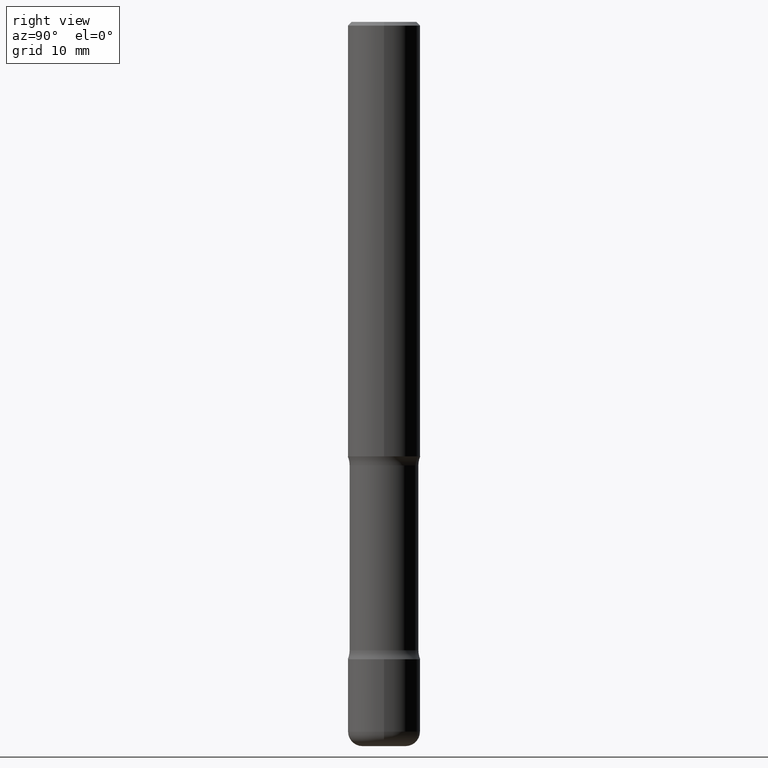
[diagram: clean part render]
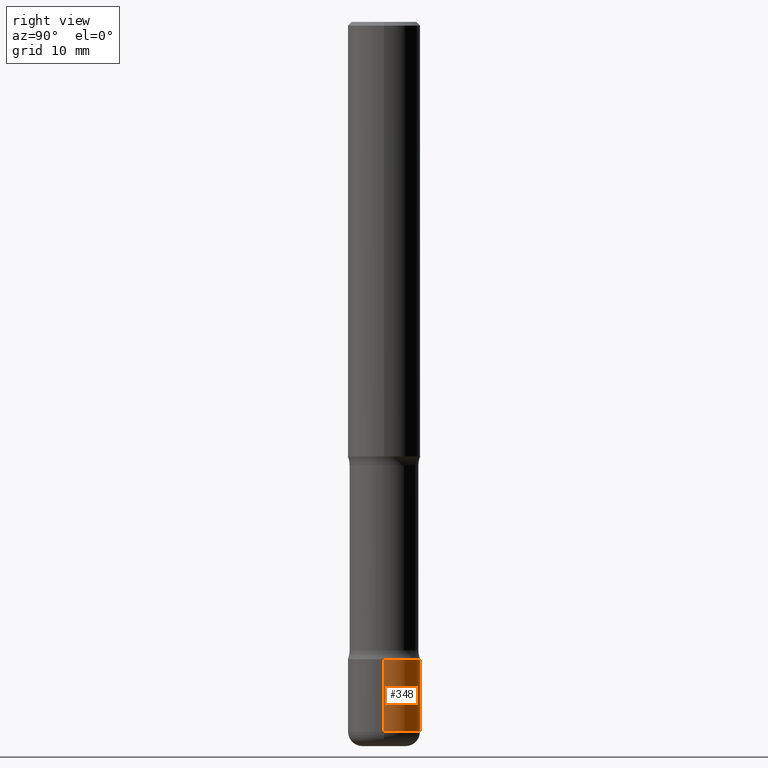
[diagram: same view with one face highlighted and labeled with its STEP entity id]
A machine part, right view. The second image highlights one B-rep face of the part: STEP entity #348.
In plain terms, the highlighted cylindrical surface (edge-blend (fillet) strip) has radius 5 mm, axis along (-0, 0, 1).
Its self-contained STEP definition (entity closure, byte-faithful):
#21 = AXIS2_PLACEMENT_3D ( 'NONE', #512, #36, #549 ) ;
#29 = AXIS2_PLACEMENT_3D ( 'NONE', #193, #150, #498 ) ;
#36 = DIRECTION ( 'NONE',  ( -2.445468806185136597E-29, 3.491481338843145583E-15, 1.000000000000000000 ) ) ;
#38 = EDGE_CURVE ( 'NONE', #98, #526, #439, .T. ) ;
#46 = FACE_OUTER_BOUND ( 'NONE', #185, .T. ) ;
#75 = CARTESIAN_POINT ( 'NONE',  ( 0.1968500000000001082, -1.347118244965850692E-14, -3.464600000000000346 ) ) ;
#85 = CARTESIAN_POINT ( 'NONE',  ( -0.1968500000000001082, -1.138518097276347833E-14, -3.464600000000000346 ) ) ;
#98 = VERTEX_POINT ( 'NONE', #505 ) ;
#109 = ORIENTED_EDGE ( 'NONE', *, *, #38, .T. ) ;
#122 = ORIENTED_EDGE ( 'NONE', *, *, #485, .F. ) ;
#128 = CYLINDRICAL_SURFACE ( 'NONE', #287, 0.1968500000000001915 ) ;
#141 = EDGE_CURVE ( 'NONE', #236, #488, #428, .T. ) ;
#150 = DIRECTION ( 'NONE',  ( -2.445468806185136597E-29, 3.491481338843145583E-15, 1.000000000000000000 ) ) ;
#175 = CARTESIAN_POINT ( 'NONE',  ( 0.000000000000000000, 0.000000000000000000, 0.000000000000000000 ) ) ;
#185 = EDGE_LOOP ( 'NONE', ( #109, #239, #444, #122 ) ) ;
#193 = CARTESIAN_POINT ( 'NONE',  ( 9.435352294904112142E-29, -1.347118244965850850E-14, -3.858300000000000285 ) ) ;
#236 = VERTEX_POINT ( 'NONE', #75 ) ;
#239 = ORIENTED_EDGE ( 'NONE', *, *, #382, .T. ) ;
#262 = LINE ( 'NONE', #435, #418 ) ;
#287 = AXIS2_PLACEMENT_3D ( 'NONE', #175, #307, #478 ) ;
#307 = DIRECTION ( 'NONE',  ( -2.445468806185136597E-29, 3.491481338843145583E-15, 1.000000000000000000 ) ) ;
#348 = ADVANCED_FACE ( 'NONE', ( #46 ), #128, .T. ) ;
#382 = EDGE_CURVE ( 'NONE', #526, #488, #262, .T. ) ;
#386 = DIRECTION ( 'NONE',  ( -2.445468806185136877E-29, 3.491481338843145188E-15, 1.000000000000000000 ) ) ;
#418 = VECTOR ( 'NONE', #437, 39.37007874015748143 ) ;
#428 = CIRCLE ( 'NONE', #21, 0.1968500000000001082 ) ;
#435 = CARTESIAN_POINT ( 'NONE',  ( -0.1968500000000001915, 1.398703375343758577E-15, -9.682923725166790684E-30 ) ) ;
#437 = DIRECTION ( 'NONE',  ( -2.445468806185136877E-29, 3.491481338843145188E-15, 1.000000000000000000 ) ) ;
#439 = CIRCLE ( 'NONE', #29, 0.1968500000000002470 ) ;
#443 = CARTESIAN_POINT ( 'NONE',  ( -0.1968500000000003580, -1.207247907431474834E-14, -3.858300000000000285 ) ) ;
#444 = ORIENTED_EDGE ( 'NONE', *, *, #141, .F. ) ;
#478 = DIRECTION ( 'NONE',  ( 1.000000000000000000, -6.982962677686266711E-15, 4.876176775795935793E-29 ) ) ;
#482 = CARTESIAN_POINT ( 'NONE',  ( 0.1968500000000001915, -1.374596203102542989E-15, 9.598753983154309266E-30 ) ) ;
#485 = EDGE_CURVE ( 'NONE', #98, #236, #524, .T. ) ;
#488 = VERTEX_POINT ( 'NONE', #85 ) ;
#494 = VECTOR ( 'NONE', #386, 39.37007874015748143 ) ;
#498 = DIRECTION ( 'NONE',  ( 1.000000000000000000, -6.982962677686269866E-15, 0.000000000000000000 ) ) ;
#505 = CARTESIAN_POINT ( 'NONE',  ( 0.1968500000000003580, -1.484577865276105326E-14, -3.858300000000000285 ) ) ;
#512 = CARTESIAN_POINT ( 'NONE',  ( 8.472571225909025905E-29, -1.209658624655596531E-14, -3.464600000000000346 ) ) ;
#524 = LINE ( 'NONE', #482, #494 ) ;
#526 = VERTEX_POINT ( 'NONE', #443 ) ;
#549 = DIRECTION ( 'NONE',  ( 1.000000000000000000, -6.982962677686265133E-15, 0.000000000000000000 ) ) ;